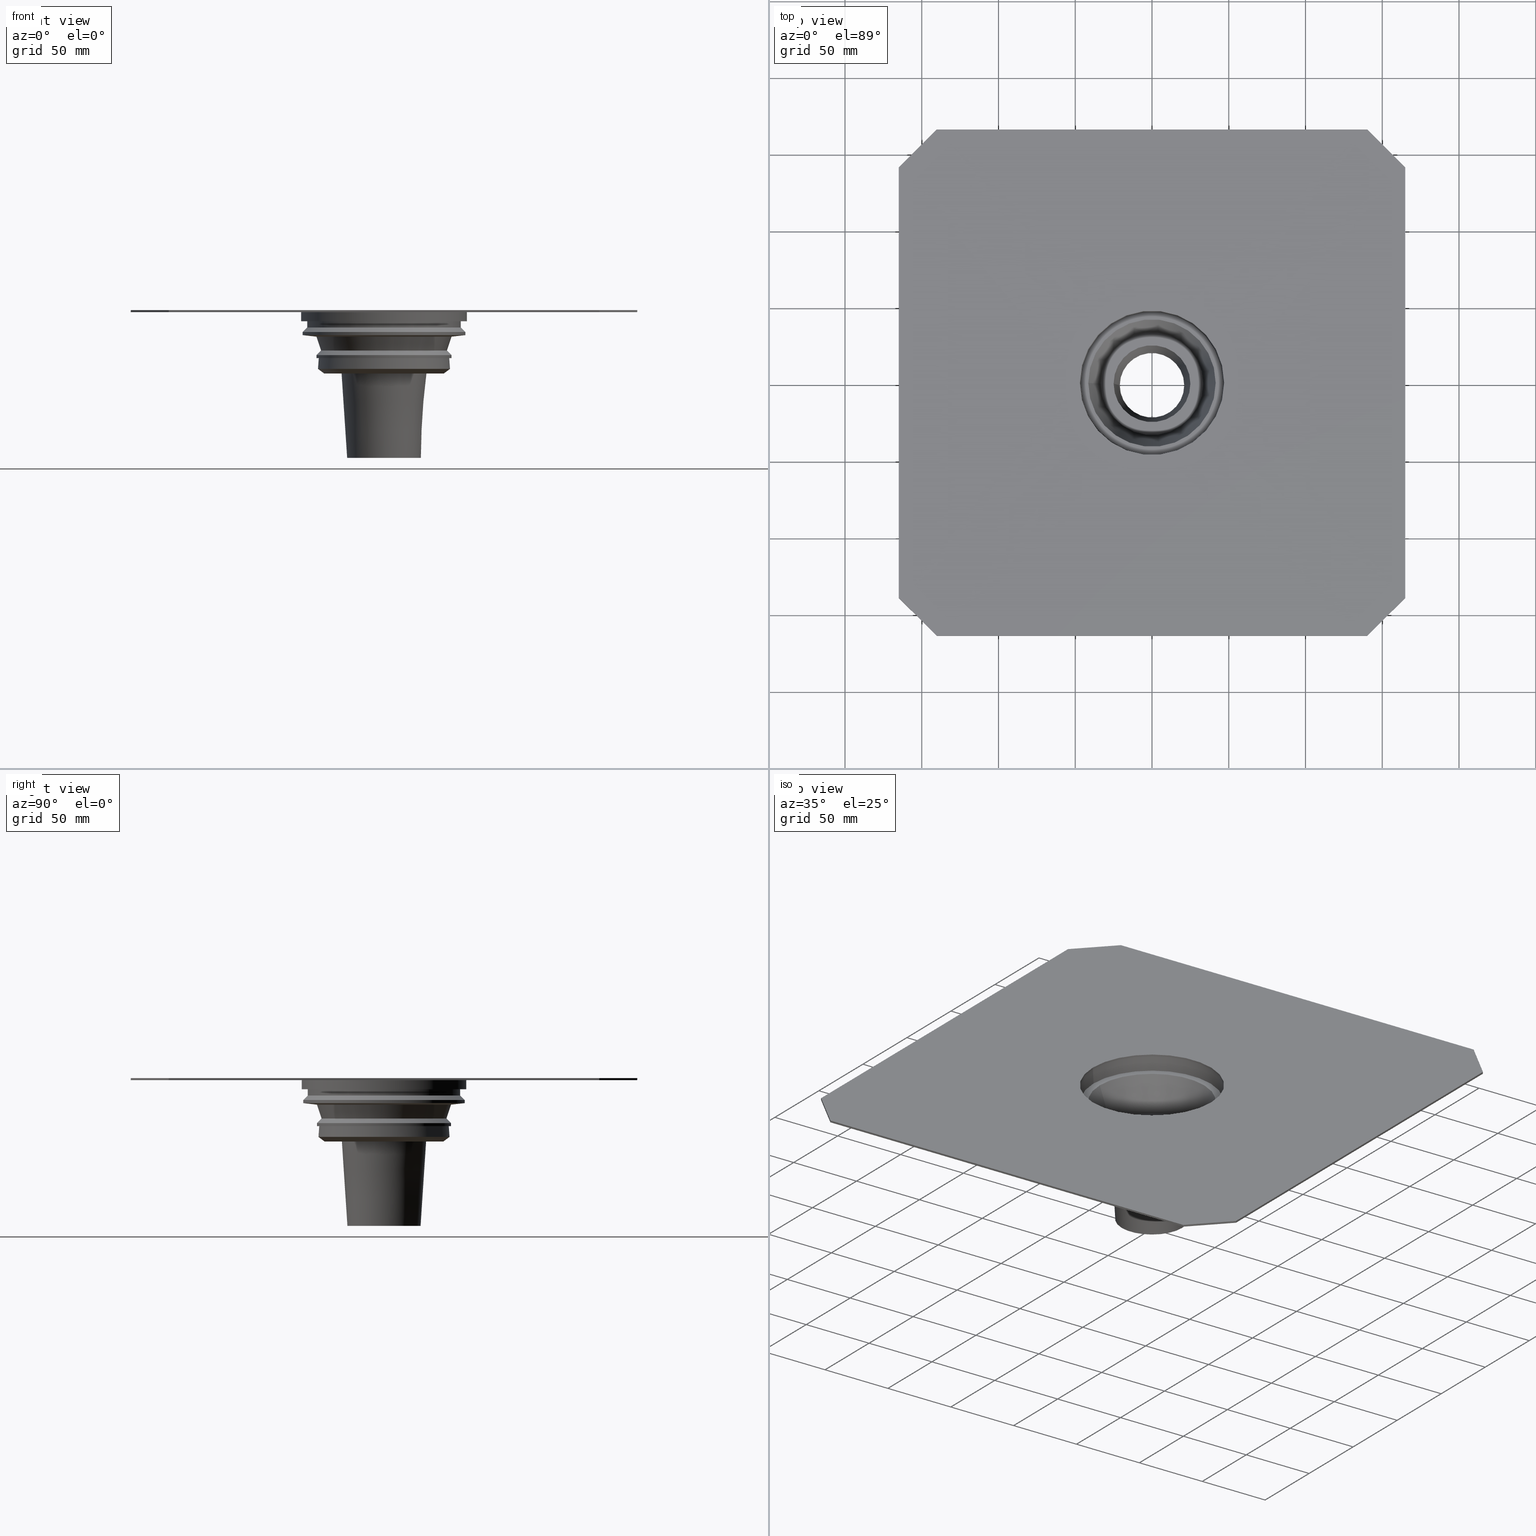
[diagram: canonical four-view strip — front | top / right | iso, engineering-drawing reading convention]
A machine part, canonical four-view strip (front | top / right | iso — engineering-drawing reading convention). The complete STEP part file that produces these views, byte-faithful:
ISO-10303-21;
HEADER;
/* Generated by software containing ST-Developer
 * from STEP Tools, Inc. (www.steptools.com) 
 */
/* OPTION: using custom renumber hook */

FILE_DESCRIPTION(
/* description */ ('STEP AP214'),
/* implementation_level */ '2;1');

FILE_NAME(
/* name */ '482062001(1)',
/* time_stamp */ '2022-12-23T08:21:37+01:00',
/* author */ ('License CC BY-ND 4.0'),
/* organization */ ('CADENAS'),
/* preprocessor_version */ 'ST-DEVELOPER v18.102',
/* originating_system */ 'PARTsolutions',
/* authorisation */ '  ');

FILE_SCHEMA (('AUTOMOTIVE_DESIGN {1 0 10303 214 3 1 1}'));
ENDSEC;

DATA;
#10=PROPERTY_DEFINITION_REPRESENTATION(#14,#12);
#11=PROPERTY_DEFINITION_REPRESENTATION(#15,#13);
#12=REPRESENTATION('',(#16),#751);
#13=REPRESENTATION('',(#17),#751);
#14=PROPERTY_DEFINITION('pmi validation property','',#756);
#15=PROPERTY_DEFINITION('pmi validation property','',#756);
#16=VALUE_REPRESENTATION_ITEM('number of annotations',COUNT_MEASURE(0.));
#17=VALUE_REPRESENTATION_ITEM('number of views',COUNT_MEASURE(0.));
#18=SHAPE_REPRESENTATION_RELATIONSHIP('','',#447,#19);
#19=ADVANCED_BREP_SHAPE_REPRESENTATION('',(#445),#751);
#20=CONICAL_SURFACE('',#465,47.,0.0499583957219435);
#21=CONICAL_SURFACE('',#469,41.5,0.321750554396642);
#22=CONICAL_SURFACE('',#473,25.,0.0659652589434212);
#23=CONICAL_SURFACE('',#477,24.,0.0659587263801631);
#24=CONICAL_SURFACE('',#481,39.,0.927295218001612);
#25=CONICAL_SURFACE('',#483,43.,0.0713074647852903);
#26=CONICAL_SURFACE('',#489,44.,0.785398163397449);
#27=CONICAL_SURFACE('',#491,41.,0.321750554396642);
#28=CONICAL_SURFACE('',#493,44.,1.460139105621);
#29=CONICAL_SURFACE('',#497,53.,0.785398163397447);
#30=CIRCLE('',#457,47.);
#31=CIRCLE('',#458,47.);
#32=CIRCLE('',#461,54.);
#33=CIRCLE('',#462,50.);
#34=CIRCLE('',#464,54.);
#35=CIRCLE('',#466,46.5);
#36=CIRCLE('',#468,41.5);
#37=CIRCLE('',#470,33.35);
#38=CIRCLE('',#472,25.);
#39=CIRCLE('',#474,21.);
#40=CIRCLE('',#476,24.);
#41=CIRCLE('',#478,27.633);
#42=CIRCLE('',#480,39.);
#43=CIRCLE('',#482,43.);
#44=CIRCLE('',#484,42.5);
#45=CIRCLE('',#486,44.);
#46=CIRCLE('',#488,44.);
#47=CIRCLE('',#490,41.);
#48=CIRCLE('',#492,44.);
#49=CIRCLE('',#494,53.);
#50=CIRCLE('',#496,53.);
#51=CIRCLE('',#498,50.);
#52=CYLINDRICAL_SURFACE('',#456,47.);
#53=CYLINDRICAL_SURFACE('',#463,54.);
#54=CYLINDRICAL_SURFACE('',#487,44.);
#55=CYLINDRICAL_SURFACE('',#495,53.);
#56=CYLINDRICAL_SURFACE('',#499,50.);
#57=ORIENTED_EDGE('',*,*,#149,.F.);
#58=ORIENTED_EDGE('',*,*,#150,.T.);
#59=ORIENTED_EDGE('',*,*,#151,.T.);
#60=ORIENTED_EDGE('',*,*,#152,.F.);
#61=ORIENTED_EDGE('',*,*,#153,.F.);
#62=ORIENTED_EDGE('',*,*,#152,.T.);
#63=ORIENTED_EDGE('',*,*,#154,.T.);
#64=ORIENTED_EDGE('',*,*,#155,.F.);
#65=ORIENTED_EDGE('',*,*,#156,.F.);
#66=ORIENTED_EDGE('',*,*,#155,.T.);
#67=ORIENTED_EDGE('',*,*,#157,.T.);
#68=ORIENTED_EDGE('',*,*,#158,.F.);
#69=ORIENTED_EDGE('',*,*,#159,.F.);
#70=ORIENTED_EDGE('',*,*,#158,.T.);
#71=ORIENTED_EDGE('',*,*,#160,.T.);
#72=ORIENTED_EDGE('',*,*,#161,.F.);
#73=ORIENTED_EDGE('',*,*,#162,.F.);
#74=ORIENTED_EDGE('',*,*,#161,.T.);
#75=ORIENTED_EDGE('',*,*,#163,.T.);
#76=ORIENTED_EDGE('',*,*,#164,.F.);
#77=ORIENTED_EDGE('',*,*,#165,.F.);
#78=ORIENTED_EDGE('',*,*,#164,.T.);
#79=ORIENTED_EDGE('',*,*,#166,.T.);
#80=ORIENTED_EDGE('',*,*,#167,.F.);
#81=ORIENTED_EDGE('',*,*,#168,.F.);
#82=ORIENTED_EDGE('',*,*,#167,.T.);
#83=ORIENTED_EDGE('',*,*,#169,.T.);
#84=ORIENTED_EDGE('',*,*,#170,.F.);
#85=ORIENTED_EDGE('',*,*,#171,.T.);
#86=ORIENTED_EDGE('',*,*,#172,.T.);
#87=ORIENTED_EDGE('',*,*,#173,.F.);
#88=ORIENTED_EDGE('',*,*,#170,.T.);
#89=ORIENTED_EDGE('',*,*,#174,.T.);
#90=ORIENTED_EDGE('',*,*,#150,.F.);
#91=ORIENTED_EDGE('',*,*,#175,.T.);
#92=ORIENTED_EDGE('',*,*,#176,.F.);
#93=ORIENTED_EDGE('',*,*,#177,.T.);
#94=ORIENTED_EDGE('',*,*,#175,.F.);
#95=ORIENTED_EDGE('',*,*,#178,.T.);
#96=ORIENTED_EDGE('',*,*,#171,.F.);
#97=ORIENTED_EDGE('',*,*,#179,.T.);
#98=ORIENTED_EDGE('',*,*,#178,.F.);
#99=ORIENTED_EDGE('',*,*,#180,.T.);
#100=ORIENTED_EDGE('',*,*,#179,.F.);
#101=ORIENTED_EDGE('',*,*,#181,.T.);
#102=ORIENTED_EDGE('',*,*,#180,.F.);
#103=ORIENTED_EDGE('',*,*,#182,.T.);
#104=ORIENTED_EDGE('',*,*,#181,.F.);
#105=ORIENTED_EDGE('',*,*,#183,.T.);
#106=ORIENTED_EDGE('',*,*,#182,.F.);
#107=ORIENTED_EDGE('',*,*,#184,.T.);
#108=ORIENTED_EDGE('',*,*,#183,.F.);
#109=ORIENTED_EDGE('',*,*,#185,.T.);
#110=ORIENTED_EDGE('',*,*,#184,.F.);
#111=ORIENTED_EDGE('',*,*,#186,.T.);
#112=ORIENTED_EDGE('',*,*,#185,.F.);
#113=ORIENTED_EDGE('',*,*,#187,.T.);
#114=ORIENTED_EDGE('',*,*,#186,.F.);
#115=ORIENTED_EDGE('',*,*,#188,.T.);
#116=ORIENTED_EDGE('',*,*,#187,.F.);
#117=ORIENTED_EDGE('',*,*,#189,.T.);
#118=ORIENTED_EDGE('',*,*,#188,.F.);
#119=ORIENTED_EDGE('',*,*,#190,.T.);
#120=ORIENTED_EDGE('',*,*,#189,.F.);
#121=ORIENTED_EDGE('',*,*,#191,.T.);
#122=ORIENTED_EDGE('',*,*,#190,.F.);
#123=ORIENTED_EDGE('',*,*,#192,.T.);
#124=ORIENTED_EDGE('',*,*,#191,.F.);
#125=ORIENTED_EDGE('',*,*,#193,.T.);
#126=ORIENTED_EDGE('',*,*,#192,.F.);
#127=ORIENTED_EDGE('',*,*,#194,.T.);
#128=ORIENTED_EDGE('',*,*,#193,.F.);
#129=ORIENTED_EDGE('',*,*,#176,.T.);
#130=ORIENTED_EDGE('',*,*,#194,.F.);
#131=ORIENTED_EDGE('',*,*,#177,.F.);
#132=ORIENTED_EDGE('',*,*,#151,.F.);
#133=ORIENTED_EDGE('',*,*,#174,.F.);
#134=ORIENTED_EDGE('',*,*,#169,.F.);
#135=ORIENTED_EDGE('',*,*,#166,.F.);
#136=ORIENTED_EDGE('',*,*,#163,.F.);
#137=ORIENTED_EDGE('',*,*,#160,.F.);
#138=ORIENTED_EDGE('',*,*,#157,.F.);
#139=ORIENTED_EDGE('',*,*,#154,.F.);
#140=ORIENTED_EDGE('',*,*,#172,.F.);
#141=ORIENTED_EDGE('',*,*,#149,.T.);
#142=ORIENTED_EDGE('',*,*,#153,.T.);
#143=ORIENTED_EDGE('',*,*,#156,.T.);
#144=ORIENTED_EDGE('',*,*,#159,.T.);
#145=ORIENTED_EDGE('',*,*,#162,.T.);
#146=ORIENTED_EDGE('',*,*,#165,.T.);
#147=ORIENTED_EDGE('',*,*,#168,.T.);
#148=ORIENTED_EDGE('',*,*,#173,.T.);
#149=EDGE_CURVE('',#195,#196,#233,.T.);
#150=EDGE_CURVE('',#195,#197,#234,.T.);
#151=EDGE_CURVE('',#197,#198,#235,.T.);
#152=EDGE_CURVE('',#196,#198,#236,.T.);
#153=EDGE_CURVE('',#196,#199,#237,.T.);
#154=EDGE_CURVE('',#198,#200,#238,.T.);
#155=EDGE_CURVE('',#199,#200,#239,.T.);
#156=EDGE_CURVE('',#199,#201,#240,.T.);
#157=EDGE_CURVE('',#200,#202,#241,.T.);
#158=EDGE_CURVE('',#201,#202,#242,.T.);
#159=EDGE_CURVE('',#201,#203,#243,.T.);
#160=EDGE_CURVE('',#202,#204,#244,.T.);
#161=EDGE_CURVE('',#203,#204,#245,.T.);
#162=EDGE_CURVE('',#203,#205,#246,.T.);
#163=EDGE_CURVE('',#204,#206,#247,.T.);
#164=EDGE_CURVE('',#205,#206,#248,.T.);
#165=EDGE_CURVE('',#205,#207,#249,.T.);
#166=EDGE_CURVE('',#206,#208,#250,.T.);
#167=EDGE_CURVE('',#207,#208,#251,.T.);
#168=EDGE_CURVE('',#207,#209,#252,.T.);
#169=EDGE_CURVE('',#208,#210,#253,.T.);
#170=EDGE_CURVE('',#209,#210,#254,.T.);
#171=EDGE_CURVE('',#211,#211,#30,.T.);
#172=EDGE_CURVE('',#212,#212,#31,.T.);
#173=EDGE_CURVE('',#209,#195,#255,.T.);
#174=EDGE_CURVE('',#210,#197,#256,.T.);
#175=EDGE_CURVE('',#213,#213,#32,.T.);
#176=EDGE_CURVE('',#214,#214,#33,.T.);
#177=EDGE_CURVE('',#215,#215,#34,.F.);
#178=EDGE_CURVE('',#216,#216,#35,.T.);
#179=EDGE_CURVE('',#217,#217,#36,.T.);
#180=EDGE_CURVE('',#218,#218,#37,.T.);
#181=EDGE_CURVE('',#219,#219,#38,.T.);
#182=EDGE_CURVE('',#220,#220,#39,.T.);
#183=EDGE_CURVE('',#221,#221,#40,.T.);
#184=EDGE_CURVE('',#222,#222,#41,.T.);
#185=EDGE_CURVE('',#223,#223,#42,.T.);
#186=EDGE_CURVE('',#224,#224,#43,.T.);
#187=EDGE_CURVE('',#225,#225,#44,.T.);
#188=EDGE_CURVE('',#226,#226,#45,.T.);
#189=EDGE_CURVE('',#227,#227,#46,.T.);
#190=EDGE_CURVE('',#228,#228,#47,.T.);
#191=EDGE_CURVE('',#229,#229,#48,.T.);
#192=EDGE_CURVE('',#230,#230,#49,.T.);
#193=EDGE_CURVE('',#231,#231,#50,.T.);
#194=EDGE_CURVE('',#232,#232,#51,.T.);
#195=VERTEX_POINT('',#637);
#196=VERTEX_POINT('',#638);
#197=VERTEX_POINT('',#640);
#198=VERTEX_POINT('',#642);
#199=VERTEX_POINT('',#646);
#200=VERTEX_POINT('',#648);
#201=VERTEX_POINT('',#652);
#202=VERTEX_POINT('',#654);
#203=VERTEX_POINT('',#658);
#204=VERTEX_POINT('',#660);
#205=VERTEX_POINT('',#664);
#206=VERTEX_POINT('',#666);
#207=VERTEX_POINT('',#670);
#208=VERTEX_POINT('',#672);
#209=VERTEX_POINT('',#676);
#210=VERTEX_POINT('',#678);
#211=VERTEX_POINT('',#682);
#212=VERTEX_POINT('',#684);
#213=VERTEX_POINT('',#690);
#214=VERTEX_POINT('',#692);
#215=VERTEX_POINT('',#695);
#216=VERTEX_POINT('',#698);
#217=VERTEX_POINT('',#701);
#218=VERTEX_POINT('',#704);
#219=VERTEX_POINT('',#707);
#220=VERTEX_POINT('',#710);
#221=VERTEX_POINT('',#713);
#222=VERTEX_POINT('',#716);
#223=VERTEX_POINT('',#719);
#224=VERTEX_POINT('',#722);
#225=VERTEX_POINT('',#725);
#226=VERTEX_POINT('',#728);
#227=VERTEX_POINT('',#731);
#228=VERTEX_POINT('',#734);
#229=VERTEX_POINT('',#737);
#230=VERTEX_POINT('',#740);
#231=VERTEX_POINT('',#743);
#232=VERTEX_POINT('',#746);
#233=LINE('',#636,#257);
#234=LINE('',#639,#258);
#235=LINE('',#641,#259);
#236=LINE('',#643,#260);
#237=LINE('',#645,#261);
#238=LINE('',#647,#262);
#239=LINE('',#649,#263);
#240=LINE('',#651,#264);
#241=LINE('',#653,#265);
#242=LINE('',#655,#266);
#243=LINE('',#657,#267);
#244=LINE('',#659,#268);
#245=LINE('',#661,#269);
#246=LINE('',#663,#270);
#247=LINE('',#665,#271);
#248=LINE('',#667,#272);
#249=LINE('',#669,#273);
#250=LINE('',#671,#274);
#251=LINE('',#673,#275);
#252=LINE('',#675,#276);
#253=LINE('',#677,#277);
#254=LINE('',#679,#278);
#255=LINE('',#686,#279);
#256=LINE('',#687,#280);
#257=VECTOR('',#506,1000.);
#258=VECTOR('',#507,1000.);
#259=VECTOR('',#508,1000.);
#260=VECTOR('',#509,1000.);
#261=VECTOR('',#512,1000.);
#262=VECTOR('',#513,1000.);
#263=VECTOR('',#514,1000.);
#264=VECTOR('',#517,1000.);
#265=VECTOR('',#518,1000.);
#266=VECTOR('',#519,1000.);
#267=VECTOR('',#522,1000.);
#268=VECTOR('',#523,1000.);
#269=VECTOR('',#524,1000.);
#270=VECTOR('',#527,1000.);
#271=VECTOR('',#528,1000.);
#272=VECTOR('',#529,1000.);
#273=VECTOR('',#532,1000.);
#274=VECTOR('',#533,1000.);
#275=VECTOR('',#534,1000.);
#276=VECTOR('',#537,1000.);
#277=VECTOR('',#538,1000.);
#278=VECTOR('',#539,1000.);
#279=VECTOR('',#548,1000.);
#280=VECTOR('',#549,1000.);
#281=EDGE_LOOP('',(#57,#58,#59,#60));
#282=EDGE_LOOP('',(#61,#62,#63,#64));
#283=EDGE_LOOP('',(#65,#66,#67,#68));
#284=EDGE_LOOP('',(#69,#70,#71,#72));
#285=EDGE_LOOP('',(#73,#74,#75,#76));
#286=EDGE_LOOP('',(#77,#78,#79,#80));
#287=EDGE_LOOP('',(#81,#82,#83,#84));
#288=EDGE_LOOP('',(#85));
#289=EDGE_LOOP('',(#86));
#290=EDGE_LOOP('',(#87,#88,#89,#90));
#291=EDGE_LOOP('',(#91));
#292=EDGE_LOOP('',(#92));
#293=EDGE_LOOP('',(#93));
#294=EDGE_LOOP('',(#94));
#295=EDGE_LOOP('',(#95));
#296=EDGE_LOOP('',(#96));
#297=EDGE_LOOP('',(#97));
#298=EDGE_LOOP('',(#98));
#299=EDGE_LOOP('',(#99));
#300=EDGE_LOOP('',(#100));
#301=EDGE_LOOP('',(#101));
#302=EDGE_LOOP('',(#102));
#303=EDGE_LOOP('',(#103));
#304=EDGE_LOOP('',(#104));
#305=EDGE_LOOP('',(#105));
#306=EDGE_LOOP('',(#106));
#307=EDGE_LOOP('',(#107));
#308=EDGE_LOOP('',(#108));
#309=EDGE_LOOP('',(#109));
#310=EDGE_LOOP('',(#110));
#311=EDGE_LOOP('',(#111));
#312=EDGE_LOOP('',(#112));
#313=EDGE_LOOP('',(#113));
#314=EDGE_LOOP('',(#114));
#315=EDGE_LOOP('',(#115));
#316=EDGE_LOOP('',(#116));
#317=EDGE_LOOP('',(#117));
#318=EDGE_LOOP('',(#118));
#319=EDGE_LOOP('',(#119));
#320=EDGE_LOOP('',(#120));
#321=EDGE_LOOP('',(#121));
#322=EDGE_LOOP('',(#122));
#323=EDGE_LOOP('',(#123));
#324=EDGE_LOOP('',(#124));
#325=EDGE_LOOP('',(#125));
#326=EDGE_LOOP('',(#126));
#327=EDGE_LOOP('',(#127));
#328=EDGE_LOOP('',(#128));
#329=EDGE_LOOP('',(#129));
#330=EDGE_LOOP('',(#130));
#331=EDGE_LOOP('',(#131));
#332=EDGE_LOOP('',(#132,#133,#134,#135,#136,#137,#138,#139));
#333=EDGE_LOOP('',(#140));
#334=EDGE_LOOP('',(#141,#142,#143,#144,#145,#146,#147,#148));
#335=FACE_BOUND('',#281,.T.);
#336=FACE_BOUND('',#282,.T.);
#337=FACE_BOUND('',#283,.T.);
#338=FACE_BOUND('',#284,.T.);
#339=FACE_BOUND('',#285,.T.);
#340=FACE_BOUND('',#286,.T.);
#341=FACE_BOUND('',#287,.T.);
#342=FACE_BOUND('',#288,.T.);
#343=FACE_BOUND('',#289,.T.);
#344=FACE_BOUND('',#290,.T.);
#345=FACE_BOUND('',#291,.T.);
#346=FACE_BOUND('',#292,.T.);
#347=FACE_BOUND('',#293,.T.);
#348=FACE_BOUND('',#294,.T.);
#349=FACE_BOUND('',#295,.T.);
#350=FACE_BOUND('',#296,.T.);
#351=FACE_BOUND('',#297,.T.);
#352=FACE_BOUND('',#298,.T.);
#353=FACE_BOUND('',#299,.T.);
#354=FACE_BOUND('',#300,.T.);
#355=FACE_BOUND('',#301,.T.);
#356=FACE_BOUND('',#302,.T.);
#357=FACE_BOUND('',#303,.T.);
#358=FACE_BOUND('',#304,.T.);
#359=FACE_BOUND('',#305,.T.);
#360=FACE_BOUND('',#306,.T.);
#361=FACE_BOUND('',#307,.T.);
#362=FACE_BOUND('',#308,.T.);
#363=FACE_BOUND('',#309,.T.);
#364=FACE_BOUND('',#310,.T.);
#365=FACE_BOUND('',#311,.T.);
#366=FACE_BOUND('',#312,.T.);
#367=FACE_BOUND('',#313,.T.);
#368=FACE_BOUND('',#314,.T.);
#369=FACE_BOUND('',#315,.T.);
#370=FACE_BOUND('',#316,.T.);
#371=FACE_BOUND('',#317,.T.);
#372=FACE_BOUND('',#318,.T.);
#373=FACE_BOUND('',#319,.T.);
#374=FACE_BOUND('',#320,.T.);
#375=FACE_BOUND('',#321,.T.);
#376=FACE_BOUND('',#322,.T.);
#377=FACE_BOUND('',#323,.T.);
#378=FACE_BOUND('',#324,.T.);
#379=FACE_BOUND('',#325,.T.);
#380=FACE_BOUND('',#326,.T.);
#381=FACE_BOUND('',#327,.T.);
#382=FACE_BOUND('',#328,.T.);
#383=FACE_BOUND('',#329,.T.);
#384=FACE_BOUND('',#330,.T.);
#385=FACE_BOUND('',#331,.T.);
#386=FACE_BOUND('',#332,.T.);
#387=FACE_BOUND('',#333,.T.);
#388=FACE_BOUND('',#334,.T.);
#389=PLANE('',#449);
#390=PLANE('',#450);
#391=PLANE('',#451);
#392=PLANE('',#452);
#393=PLANE('',#453);
#394=PLANE('',#454);
#395=PLANE('',#455);
#396=PLANE('',#459);
#397=PLANE('',#460);
#398=PLANE('',#467);
#399=PLANE('',#471);
#400=PLANE('',#475);
#401=PLANE('',#479);
#402=PLANE('',#485);
#403=PLANE('',#500);
#404=PLANE('',#501);
#405=ADVANCED_FACE('',(#335),#389,.F.);
#406=ADVANCED_FACE('',(#336),#390,.F.);
#407=ADVANCED_FACE('',(#337),#391,.F.);
#408=ADVANCED_FACE('',(#338),#392,.F.);
#409=ADVANCED_FACE('',(#339),#393,.F.);
#410=ADVANCED_FACE('',(#340),#394,.F.);
#411=ADVANCED_FACE('',(#341),#395,.F.);
#412=ADVANCED_FACE('',(#342,#343),#52,.F.);
#413=ADVANCED_FACE('',(#344),#396,.F.);
#414=ADVANCED_FACE('',(#345,#346),#397,.T.);
#415=ADVANCED_FACE('',(#347,#348),#53,.T.);
#416=ADVANCED_FACE('',(#349,#350),#20,.F.);
#417=ADVANCED_FACE('',(#351,#352),#398,.T.);
#418=ADVANCED_FACE('',(#353,#354),#21,.F.);
#419=ADVANCED_FACE('',(#355,#356),#399,.T.);
#420=ADVANCED_FACE('',(#357,#358),#22,.F.);
#421=ADVANCED_FACE('',(#359,#360),#400,.T.);
#422=ADVANCED_FACE('',(#361,#362),#23,.T.);
#423=ADVANCED_FACE('',(#363,#364),#401,.T.);
#424=ADVANCED_FACE('',(#365,#366),#24,.T.);
#425=ADVANCED_FACE('',(#367,#368),#25,.T.);
#426=ADVANCED_FACE('',(#369,#370),#402,.T.);
#427=ADVANCED_FACE('',(#371,#372),#54,.T.);
#428=ADVANCED_FACE('',(#373,#374),#26,.T.);
#429=ADVANCED_FACE('',(#375,#376),#27,.T.);
#430=ADVANCED_FACE('',(#377,#378),#28,.T.);
#431=ADVANCED_FACE('',(#379,#380),#55,.T.);
#432=ADVANCED_FACE('',(#381,#382),#29,.T.);
#433=ADVANCED_FACE('',(#383,#384),#56,.T.);
#434=ADVANCED_FACE('',(#385,#386),#403,.F.);
#435=ADVANCED_FACE('',(#387,#388),#404,.T.);
#436=CLOSED_SHELL('',(#405,#406,#407,#408,#409,#410,#411,#412,#413,#414,
#415,#416,#417,#418,#419,#420,#421,#422,#423,#424,#425,#426,#427,#428,#429,
#430,#431,#432,#433,#434,#435));
#437=STYLED_ITEM('',(#438),#445);
#438=PRESENTATION_STYLE_ASSIGNMENT((#439));
#439=SURFACE_STYLE_USAGE(.BOTH.,#440);
#440=SURFACE_SIDE_STYLE('',(#441));
#441=SURFACE_STYLE_FILL_AREA(#442);
#442=FILL_AREA_STYLE('',(#443));
#443=FILL_AREA_STYLE_COLOUR('',#444);
#444=COLOUR_RGB('',0.689999997615814,0.689999997615814,0.689999997615814);
#445=MANIFOLD_SOLID_BREP('482062001(1)',#436);
#446=SHAPE_DEFINITION_REPRESENTATION(#756,#447);
#447=SHAPE_REPRESENTATION('482062001(1)',(#448),#751);
#448=AXIS2_PLACEMENT_3D('',#634,#502,#503);
#449=AXIS2_PLACEMENT_3D('',#635,#504,#505);
#450=AXIS2_PLACEMENT_3D('',#644,#510,#511);
#451=AXIS2_PLACEMENT_3D('',#650,#515,#516);
#452=AXIS2_PLACEMENT_3D('',#656,#520,#521);
#453=AXIS2_PLACEMENT_3D('',#662,#525,#526);
#454=AXIS2_PLACEMENT_3D('',#668,#530,#531);
#455=AXIS2_PLACEMENT_3D('',#674,#535,#536);
#456=AXIS2_PLACEMENT_3D('',#680,#540,#541);
#457=AXIS2_PLACEMENT_3D('',#681,#542,#543);
#458=AXIS2_PLACEMENT_3D('',#683,#544,#545);
#459=AXIS2_PLACEMENT_3D('',#685,#546,#547);
#460=AXIS2_PLACEMENT_3D('',#688,#550,#551);
#461=AXIS2_PLACEMENT_3D('',#689,#552,#553);
#462=AXIS2_PLACEMENT_3D('',#691,#554,#555);
#463=AXIS2_PLACEMENT_3D('',#693,#556,#557);
#464=AXIS2_PLACEMENT_3D('',#694,#558,#559);
#465=AXIS2_PLACEMENT_3D('',#696,#560,#561);
#466=AXIS2_PLACEMENT_3D('',#697,#562,#563);
#467=AXIS2_PLACEMENT_3D('',#699,#564,#565);
#468=AXIS2_PLACEMENT_3D('',#700,#566,#567);
#469=AXIS2_PLACEMENT_3D('',#702,#568,#569);
#470=AXIS2_PLACEMENT_3D('',#703,#570,#571);
#471=AXIS2_PLACEMENT_3D('',#705,#572,#573);
#472=AXIS2_PLACEMENT_3D('',#706,#574,#575);
#473=AXIS2_PLACEMENT_3D('',#708,#576,#577);
#474=AXIS2_PLACEMENT_3D('',#709,#578,#579);
#475=AXIS2_PLACEMENT_3D('',#711,#580,#581);
#476=AXIS2_PLACEMENT_3D('',#712,#582,#583);
#477=AXIS2_PLACEMENT_3D('',#714,#584,#585);
#478=AXIS2_PLACEMENT_3D('',#715,#586,#587);
#479=AXIS2_PLACEMENT_3D('',#717,#588,#589);
#480=AXIS2_PLACEMENT_3D('',#718,#590,#591);
#481=AXIS2_PLACEMENT_3D('',#720,#592,#593);
#482=AXIS2_PLACEMENT_3D('',#721,#594,#595);
#483=AXIS2_PLACEMENT_3D('',#723,#596,#597);
#484=AXIS2_PLACEMENT_3D('',#724,#598,#599);
#485=AXIS2_PLACEMENT_3D('',#726,#600,#601);
#486=AXIS2_PLACEMENT_3D('',#727,#602,#603);
#487=AXIS2_PLACEMENT_3D('',#729,#604,#605);
#488=AXIS2_PLACEMENT_3D('',#730,#606,#607);
#489=AXIS2_PLACEMENT_3D('',#732,#608,#609);
#490=AXIS2_PLACEMENT_3D('',#733,#610,#611);
#491=AXIS2_PLACEMENT_3D('',#735,#612,#613);
#492=AXIS2_PLACEMENT_3D('',#736,#614,#615);
#493=AXIS2_PLACEMENT_3D('',#738,#616,#617);
#494=AXIS2_PLACEMENT_3D('',#739,#618,#619);
#495=AXIS2_PLACEMENT_3D('',#741,#620,#621);
#496=AXIS2_PLACEMENT_3D('',#742,#622,#623);
#497=AXIS2_PLACEMENT_3D('',#744,#624,#625);
#498=AXIS2_PLACEMENT_3D('',#745,#626,#627);
#499=AXIS2_PLACEMENT_3D('',#747,#628,#629);
#500=AXIS2_PLACEMENT_3D('',#748,#630,#631);
#501=AXIS2_PLACEMENT_3D('',#749,#632,#633);
#502=DIRECTION('',(0.,0.,1.));
#503=DIRECTION('',(1.,0.,0.));
#504=DIRECTION('',(1.,0.,0.));
#505=DIRECTION('',(0.,0.,-1.));
#506=DIRECTION('',(0.,-1.,0.));
#507=DIRECTION('',(0.,0.,-1.));
#508=DIRECTION('',(0.,-1.,0.));
#509=DIRECTION('',(0.,0.,-1.));
#510=DIRECTION('',(0.707106781186548,0.707106781186548,0.));
#511=DIRECTION('',(-0.707106781186548,0.707106781186548,0.));
#512=DIRECTION('',(0.707106781186548,-0.707106781186548,1.35290595589709E-18));
#513=DIRECTION('',(0.707106781186547,-0.707106781186547,0.));
#514=DIRECTION('',(0.,0.,-1.));
#515=DIRECTION('',(0.,1.,0.));
#516=DIRECTION('',(0.,0.,1.));
#517=DIRECTION('',(1.,0.,1.91329795144501E-18));
#518=DIRECTION('',(1.,0.,0.));
#519=DIRECTION('',(0.,0.,-1.));
#520=DIRECTION('',(-0.707106781186548,0.707106781186548,0.));
#521=DIRECTION('',(-0.707106781186548,-0.707106781186548,0.));
#522=DIRECTION('',(0.707106781186548,0.707106781186548,1.35290595589709E-18));
#523=DIRECTION('',(0.707106781186547,0.707106781186547,0.));
#524=DIRECTION('',(0.,0.,-1.));
#525=DIRECTION('',(-1.,0.,0.));
#526=DIRECTION('',(0.,0.,1.));
#527=DIRECTION('',(0.,1.,0.));
#528=DIRECTION('',(0.,1.,0.));
#529=DIRECTION('',(0.,0.,-1.));
#530=DIRECTION('',(-0.707106781186548,-0.707106781186548,0.));
#531=DIRECTION('',(0.707106781186548,-0.707106781186548,0.));
#532=DIRECTION('',(-0.707106781186548,0.707106781186548,-1.35290595589709E-18));
#533=DIRECTION('',(-0.707106781186547,0.707106781186547,0.));
#534=DIRECTION('',(0.,0.,-1.));
#535=DIRECTION('',(0.,-1.,0.));
#536=DIRECTION('',(0.,0.,-1.));
#537=DIRECTION('',(-1.,0.,-1.91329795144501E-18));
#538=DIRECTION('',(-1.,0.,0.));
#539=DIRECTION('',(0.,0.,-1.));
#540=DIRECTION('',(0.,0.,-1.));
#541=DIRECTION('',(-1.,0.,0.));
#542=DIRECTION('',(0.,0.,-1.));
#543=DIRECTION('',(-1.,0.,0.));
#544=DIRECTION('',(-1.91329795144501E-18,0.,1.));
#545=DIRECTION('',(1.,0.,1.91329795144501E-18));
#546=DIRECTION('',(0.707106781186548,-0.707106781186548,0.));
#547=DIRECTION('',(0.707106781186548,0.707106781186548,0.));
#548=DIRECTION('',(-0.707106781186548,-0.707106781186548,-1.35290595589709E-18));
#549=DIRECTION('',(-0.707106781186547,-0.707106781186547,0.));
#550=DIRECTION('',(0.,0.,-1.));
#551=DIRECTION('',(-1.,0.,0.));
#552=DIRECTION('',(0.,0.,-1.));
#553=DIRECTION('',(-1.,0.,0.));
#554=DIRECTION('',(0.,0.,-1.));
#555=DIRECTION('',(-1.,0.,0.));
#556=DIRECTION('',(0.,0.,-1.));
#557=DIRECTION('',(-1.,0.,0.));
#558=DIRECTION('',(0.,0.,1.));
#559=DIRECTION('',(1.,0.,0.));
#560=DIRECTION('',(0.,0.,1.));
#561=DIRECTION('',(1.,0.,0.));
#562=DIRECTION('',(0.,0.,-1.));
#563=DIRECTION('',(-1.,0.,0.));
#564=DIRECTION('',(0.,0.,1.));
#565=DIRECTION('',(1.,0.,0.));
#566=DIRECTION('',(0.,0.,-1.));
#567=DIRECTION('',(-1.,0.,0.));
#568=DIRECTION('',(0.,0.,1.));
#569=DIRECTION('',(1.,0.,0.));
#570=DIRECTION('',(0.,0.,-1.));
#571=DIRECTION('',(-1.,0.,0.));
#572=DIRECTION('',(0.,0.,1.));
#573=DIRECTION('',(1.,0.,0.));
#574=DIRECTION('',(0.,0.,-1.));
#575=DIRECTION('',(-1.,0.,0.));
#576=DIRECTION('',(0.,0.,1.));
#577=DIRECTION('',(1.,0.,0.));
#578=DIRECTION('',(0.,0.,-1.));
#579=DIRECTION('',(-1.,0.,0.));
#580=DIRECTION('',(0.,0.,-1.));
#581=DIRECTION('',(-1.,0.,0.));
#582=DIRECTION('',(0.,0.,-1.));
#583=DIRECTION('',(-1.,0.,0.));
#584=DIRECTION('',(0.,0.,1.));
#585=DIRECTION('',(1.,0.,0.));
#586=DIRECTION('',(0.,0.,-1.));
#587=DIRECTION('',(-1.,0.,0.));
#588=DIRECTION('',(0.,0.,-1.));
#589=DIRECTION('',(-1.,0.,0.));
#590=DIRECTION('',(0.,0.,-1.));
#591=DIRECTION('',(-1.,0.,0.));
#592=DIRECTION('',(0.,0.,1.));
#593=DIRECTION('',(1.,0.,0.));
#594=DIRECTION('',(0.,0.,-1.));
#595=DIRECTION('',(-1.,0.,0.));
#596=DIRECTION('',(0.,0.,-1.));
#597=DIRECTION('',(-1.,0.,0.));
#598=DIRECTION('',(0.,0.,-1.));
#599=DIRECTION('',(-1.,0.,0.));
#600=DIRECTION('',(0.,0.,-1.));
#601=DIRECTION('',(-1.,0.,0.));
#602=DIRECTION('',(0.,0.,-1.));
#603=DIRECTION('',(-1.,0.,0.));
#604=DIRECTION('',(0.,0.,-1.));
#605=DIRECTION('',(-1.,0.,0.));
#606=DIRECTION('',(0.,0.,-1.));
#607=DIRECTION('',(-1.,0.,0.));
#608=DIRECTION('',(0.,0.,-1.));
#609=DIRECTION('',(-1.,0.,0.));
#610=DIRECTION('',(0.,0.,-1.));
#611=DIRECTION('',(-1.,0.,0.));
#612=DIRECTION('',(0.,0.,1.));
#613=DIRECTION('',(1.,0.,0.));
#614=DIRECTION('',(0.,0.,-1.));
#615=DIRECTION('',(-1.,0.,0.));
#616=DIRECTION('',(0.,0.,1.));
#617=DIRECTION('',(1.,0.,0.));
#618=DIRECTION('',(0.,0.,-1.));
#619=DIRECTION('',(-1.,0.,0.));
#620=DIRECTION('',(0.,0.,-1.));
#621=DIRECTION('',(-1.,0.,0.));
#622=DIRECTION('',(0.,0.,-1.));
#623=DIRECTION('',(-1.,0.,0.));
#624=DIRECTION('',(0.,0.,-1.));
#625=DIRECTION('',(-1.,0.,0.));
#626=DIRECTION('',(0.,0.,-1.));
#627=DIRECTION('',(-1.,0.,0.));
#628=DIRECTION('',(0.,0.,-1.));
#629=DIRECTION('',(-1.,0.,0.));
#630=DIRECTION('',(0.,0.,1.));
#631=DIRECTION('',(1.,0.,0.));
#632=DIRECTION('',(-1.91329795144501E-18,0.,1.));
#633=DIRECTION('',(1.,0.,1.91329795144501E-18));
#634=CARTESIAN_POINT('',(0.,0.,0.));
#635=CARTESIAN_POINT('',(-165.,140.251262658471,5.));
#636=CARTESIAN_POINT('',(-165.,140.251262658471,1.3));
#637=CARTESIAN_POINT('',(-165.,140.251262658471,1.3));
#638=CARTESIAN_POINT('',(-165.,-140.251262658471,1.3));
#639=CARTESIAN_POINT('',(-165.,140.251262658471,5.));
#640=CARTESIAN_POINT('',(-165.,140.251262658471,0.));
#641=CARTESIAN_POINT('',(-165.,140.251262658471,0.));
#642=CARTESIAN_POINT('',(-165.,-140.251262658471,0.));
#643=CARTESIAN_POINT('',(-165.,-140.251262658471,5.));
#644=CARTESIAN_POINT('',(-165.,-140.251262658471,5.));
#645=CARTESIAN_POINT('',(-165.,-140.251262658471,1.3));
#646=CARTESIAN_POINT('',(-140.251262658471,-165.,1.3));
#647=CARTESIAN_POINT('',(-165.,-140.251262658471,0.));
#648=CARTESIAN_POINT('',(-140.251262658471,-165.,0.));
#649=CARTESIAN_POINT('',(-140.251262658471,-165.,5.));
#650=CARTESIAN_POINT('',(-140.251262658471,-165.,5.));
#651=CARTESIAN_POINT('',(-140.251262658471,-165.,1.3));
#652=CARTESIAN_POINT('',(140.251262658471,-165.,1.3));
#653=CARTESIAN_POINT('',(-140.251262658471,-165.,0.));
#654=CARTESIAN_POINT('',(140.251262658471,-165.,0.));
#655=CARTESIAN_POINT('',(140.251262658471,-165.,5.));
#656=CARTESIAN_POINT('',(140.251262658471,-165.,5.));
#657=CARTESIAN_POINT('',(140.251262658471,-165.,1.3));
#658=CARTESIAN_POINT('',(165.,-140.251262658471,1.3));
#659=CARTESIAN_POINT('',(140.251262658471,-165.,0.));
#660=CARTESIAN_POINT('',(165.,-140.251262658471,0.));
#661=CARTESIAN_POINT('',(165.,-140.251262658471,5.));
#662=CARTESIAN_POINT('',(165.,-140.251262658471,5.));
#663=CARTESIAN_POINT('',(165.,-140.251262658471,1.3));
#664=CARTESIAN_POINT('',(165.,140.251262658471,1.3));
#665=CARTESIAN_POINT('',(165.,-140.251262658471,0.));
#666=CARTESIAN_POINT('',(165.,140.251262658471,0.));
#667=CARTESIAN_POINT('',(165.,140.251262658471,5.));
#668=CARTESIAN_POINT('',(165.,140.251262658471,5.));
#669=CARTESIAN_POINT('',(165.,140.251262658471,1.3));
#670=CARTESIAN_POINT('',(140.251262658471,165.,1.3));
#671=CARTESIAN_POINT('',(165.,140.251262658471,0.));
#672=CARTESIAN_POINT('',(140.251262658471,165.,0.));
#673=CARTESIAN_POINT('',(140.251262658471,165.,5.));
#674=CARTESIAN_POINT('',(140.251262658471,165.,5.));
#675=CARTESIAN_POINT('',(140.251262658471,165.,1.3));
#676=CARTESIAN_POINT('',(-140.251262658471,165.,1.3));
#677=CARTESIAN_POINT('',(140.251262658471,165.,0.));
#678=CARTESIAN_POINT('',(-140.251262658471,165.,0.));
#679=CARTESIAN_POINT('',(-140.251262658471,165.,5.));
#680=CARTESIAN_POINT('',(0.,0.,5.));
#681=CARTESIAN_POINT('',(0.,0.,0.));
#682=CARTESIAN_POINT('',(-47.,0.,0.));
#683=CARTESIAN_POINT('',(0.,0.,1.3));
#684=CARTESIAN_POINT('',(47.,0.,1.3));
#685=CARTESIAN_POINT('',(-140.251262658471,165.,5.));
#686=CARTESIAN_POINT('',(-140.251262658471,165.,1.3));
#687=CARTESIAN_POINT('',(-140.251262658471,165.,0.));
#688=CARTESIAN_POINT('',(-50.,0.,-6.));
#689=CARTESIAN_POINT('',(0.,0.,-6.));
#690=CARTESIAN_POINT('',(-54.,0.,-6.));
#691=CARTESIAN_POINT('',(0.,0.,-6.));
#692=CARTESIAN_POINT('',(-50.,0.,-6.));
#693=CARTESIAN_POINT('',(0.,0.,-8.));
#694=CARTESIAN_POINT('',(0.,0.,0.));
#695=CARTESIAN_POINT('',(54.,0.,0.));
#696=CARTESIAN_POINT('',(0.,0.,0.));
#697=CARTESIAN_POINT('',(0.,0.,-10.));
#698=CARTESIAN_POINT('',(-46.5,0.,-10.));
#699=CARTESIAN_POINT('',(-46.5,0.,-10.));
#700=CARTESIAN_POINT('',(0.,0.,-10.));
#701=CARTESIAN_POINT('',(-41.5,0.,-10.));
#702=CARTESIAN_POINT('',(0.,0.,-10.));
#703=CARTESIAN_POINT('',(0.,0.,-34.45));
#704=CARTESIAN_POINT('',(-33.35,0.,-34.45));
#705=CARTESIAN_POINT('',(-33.35,0.,-34.45));
#706=CARTESIAN_POINT('',(0.,0.,-34.45));
#707=CARTESIAN_POINT('',(-25.,0.,-34.45));
#708=CARTESIAN_POINT('',(0.,0.,-34.45));
#709=CARTESIAN_POINT('',(0.,0.,-95.));
#710=CARTESIAN_POINT('',(-21.,0.,-95.));
#711=CARTESIAN_POINT('',(-21.,0.,-95.));
#712=CARTESIAN_POINT('',(0.,0.,-95.));
#713=CARTESIAN_POINT('',(-24.,0.,-95.));
#714=CARTESIAN_POINT('',(0.,0.,-95.));
#715=CARTESIAN_POINT('',(0.,0.,-40.));
#716=CARTESIAN_POINT('',(-27.633,0.,-40.));
#717=CARTESIAN_POINT('',(-27.633,0.,-40.));
#718=CARTESIAN_POINT('',(0.,0.,-40.));
#719=CARTESIAN_POINT('',(-39.,0.,-40.));
#720=CARTESIAN_POINT('',(0.,0.,-40.));
#721=CARTESIAN_POINT('',(0.,0.,-37.));
#722=CARTESIAN_POINT('',(-43.,0.,-37.));
#723=CARTESIAN_POINT('',(0.,0.,-37.));
#724=CARTESIAN_POINT('',(0.,0.,-30.));
#725=CARTESIAN_POINT('',(-42.5,0.,-30.));
#726=CARTESIAN_POINT('',(-42.5,0.,-30.));
#727=CARTESIAN_POINT('',(0.,0.,-30.));
#728=CARTESIAN_POINT('',(-44.,0.,-30.));
#729=CARTESIAN_POINT('',(0.,0.,-8.));
#730=CARTESIAN_POINT('',(0.,0.,-28.));
#731=CARTESIAN_POINT('',(-44.,0.,-28.));
#732=CARTESIAN_POINT('',(0.,0.,-28.));
#733=CARTESIAN_POINT('',(0.,0.,-25.));
#734=CARTESIAN_POINT('',(-41.,0.,-25.));
#735=CARTESIAN_POINT('',(0.,0.,-25.));
#736=CARTESIAN_POINT('',(0.,0.,-16.));
#737=CARTESIAN_POINT('',(-44.,0.,-16.));
#738=CARTESIAN_POINT('',(0.,0.,-16.));
#739=CARTESIAN_POINT('',(0.,0.,-15.));
#740=CARTESIAN_POINT('',(-53.,0.,-15.));
#741=CARTESIAN_POINT('',(0.,0.,-8.));
#742=CARTESIAN_POINT('',(0.,0.,-13.));
#743=CARTESIAN_POINT('',(-53.,0.,-13.));
#744=CARTESIAN_POINT('',(0.,0.,-13.));
#745=CARTESIAN_POINT('',(0.,0.,-10.));
#746=CARTESIAN_POINT('',(-50.,0.,-10.));
#747=CARTESIAN_POINT('',(0.,0.,-8.));
#748=CARTESIAN_POINT('',(0.,0.,0.));
#749=CARTESIAN_POINT('',(170.,170.,1.3));
#750=MECHANICAL_DESIGN_GEOMETRIC_PRESENTATION_REPRESENTATION('',(#437),
#751);
#751=(
GEOMETRIC_REPRESENTATION_CONTEXT(3)
GLOBAL_UNCERTAINTY_ASSIGNED_CONTEXT((#752))
GLOBAL_UNIT_ASSIGNED_CONTEXT((#755,#754,#753))
REPRESENTATION_CONTEXT('482062001(1)','TOP_LEVEL_ASSEMBLY_PART')
);
#752=UNCERTAINTY_MEASURE_WITH_UNIT(LENGTH_MEASURE(0.005),#755,
'DISTANCE_ACCURACY_VALUE','Maximum Tolerance applied to model');
#753=(
NAMED_UNIT(*)
SI_UNIT($,.STERADIAN.)
SOLID_ANGLE_UNIT()
);
#754=(
NAMED_UNIT(*)
PLANE_ANGLE_UNIT()
SI_UNIT($,.RADIAN.)
);
#755=(
LENGTH_UNIT()
NAMED_UNIT(*)
SI_UNIT(.MILLI.,.METRE.)
);
#756=PRODUCT_DEFINITION_SHAPE('','',#757);
#757=PRODUCT_DEFINITION('','',#759,#758);
#758=PRODUCT_DEFINITION_CONTEXT('',#765,'design');
#759=PRODUCT_DEFINITION_FORMATION_WITH_SPECIFIED_SOURCE('','',#761,
 .NOT_KNOWN.);
#760=PRODUCT_RELATED_PRODUCT_CATEGORY('','',(#761));
#761=PRODUCT('482062001(1)','482062001(1)','482062001(1)',(#763));
#762=PRODUCT_CATEGORY('','');
#763=PRODUCT_CONTEXT('',#765,'mechanical');
#764=APPLICATION_PROTOCOL_DEFINITION('international standard',
'automotive_design',2010,#765);
#765=APPLICATION_CONTEXT(
'core data for automotive mechanical design processes');
ENDSEC;
END-ISO-10303-21;
